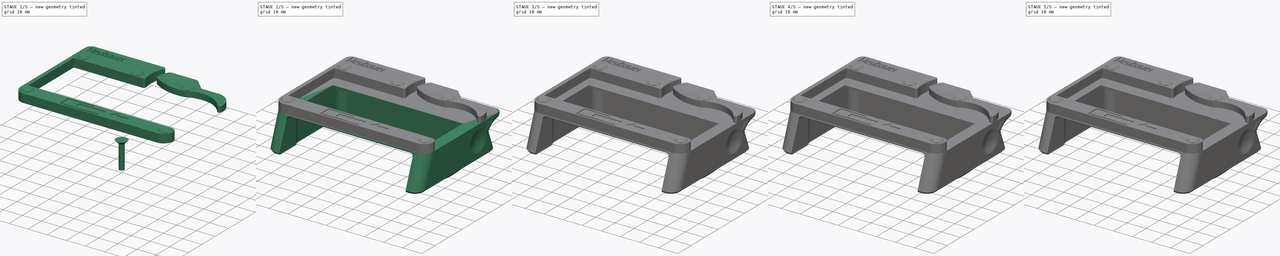
[diagram: build sequence overview — one tinted view per stage of 5, left to right]
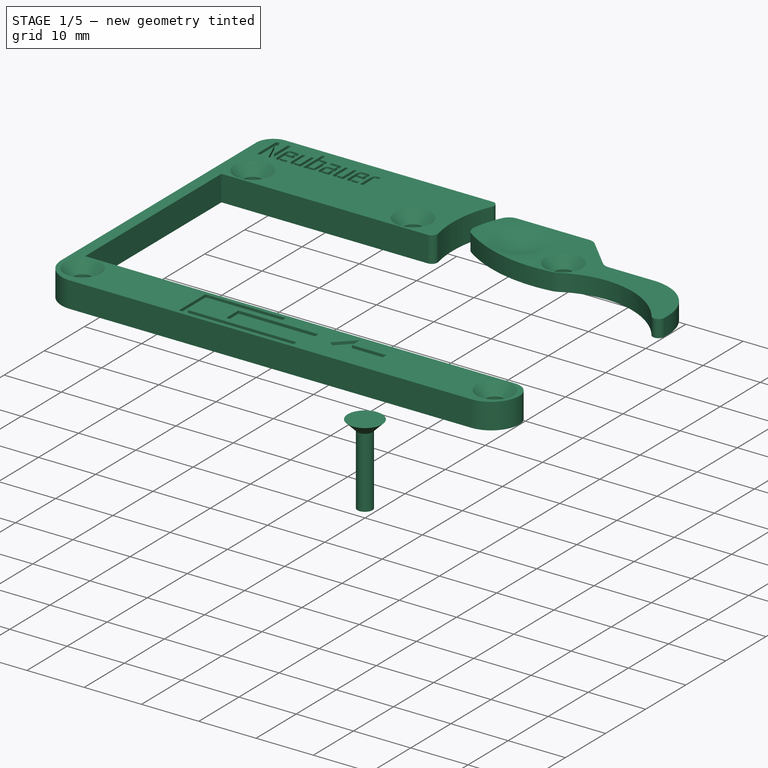
[diagram: stage 1 of 5 — iso view after this stage's code; geometry added in this stage tinted green]
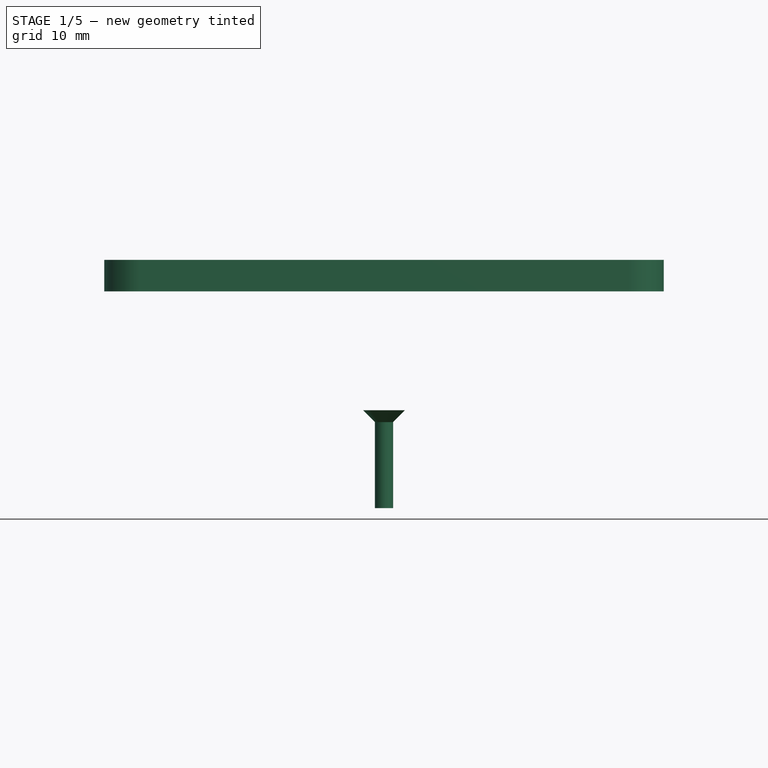
[diagram: stage 1 of 5 — front view after this stage's code; geometry added in this stage tinted green]
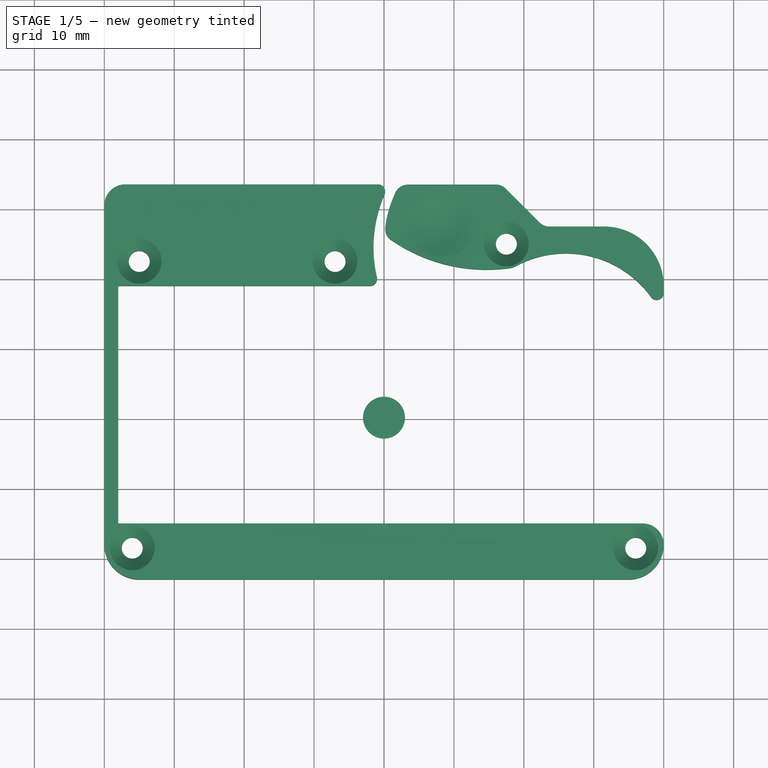
[diagram: stage 1 of 5 — top view after this stage's code; geometry added in this stage tinted green]
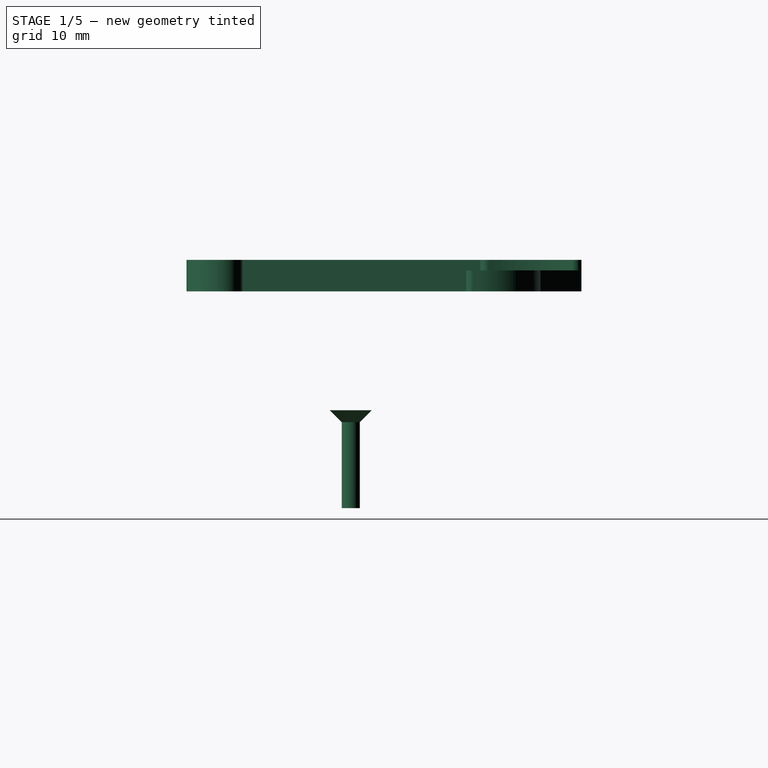
[diagram: stage 1 of 5 — right view after this stage's code; geometry added in this stage tinted green]
FCSTD DOCUMENT  (FreeCAD 0.16RUnknown)
Label: NeubauerTray
License: All rights reserved
LicenseURL: http://en.wikipedia.org/wiki/All_rights_reserved
objects: Part::FeaturePython×8, Part::Cut×5, App::DocumentObjectGroup×3, Spreadsheet::Sheet×1, Sketcher::SketchObject×1, PartDesign::Revolution×1, Part::Mirroring×1
note: 17 computed .brp shape members not serialized (recipe doc carries the construction recipe); baked Part::Feature solids carry a one-line shape summary decoded from their .brp

FEATURE [Sketcher::SketchObject] Sketch003  label="DIN7991M3 bolt"
  Placement = pos=(0,0,0) rot=(1,0,0;1.5708rad)
  expr: Constraints[11] = 1.5 - 2 * pars.CilTight
  sketch-geometry (5):
    g0: LineSegment StartX=0 StartY=0 StartZ=0 EndX=3 EndY=0 EndZ=0
    g1: LineSegment StartX=3 StartY=0 StartZ=0 EndX=1.3 EndY=-1.7 EndZ=0
    g2: LineSegment StartX=1.3 StartY=-1.7 StartZ=0 EndX=1.3 EndY=-14 EndZ=0
    g3: LineSegment StartX=1.3 StartY=-14 StartZ=0 EndX=0 EndY=-14 EndZ=0
    g4: LineSegment StartX=0 StartY=-14 StartZ=0 EndX=0 EndY=0 EndZ=0
  constraints (14):
    c: Coincident(g0,g1)
    c: Coincident(g1,g2)
    c: Coincident(g2,g3)
    c: Coincident(g3,g4)
    c: Coincident(g4,g0)
    c: Vertical(g4)
    c: Vertical(g2)
    c: Horizontal(g3)
    c: Horizontal(g0)
    c: Angle(g0,g1) = 0.785398
    c: Coincident(g0,g-1)
    c: DistanceX(g3,g3) = 1.3
    c: DistanceY(g4,g4) = 14
    c: DistanceX(g0,g0) = 3
FEATURE [PartDesign::Revolution] Revolution  label="DIN7991M3 bolt001"
  Angle = 360
  Axis = (0,0,1)
  Base = (0,0,0)
  Placement = pos=(0,0,0) rot=(1,0,0;1.5708rad)
  ReferenceAxis = -> Sketch003 [V_Axis]
  Reversed = true
  Sketch = -> Sketch003
FEATURE [Part::FeaturePython] NeubauerTop_01  label="NeubauerTop"  # a2plus imported part (geometry in sourceFile) (typed FeaturePython)
  Placement = pos=(0,0,17) rot=(0,0,1;3.14159rad)
  fixedPosition = false
  sourceFile = ./NeubauerTop.fcstd
  timeLastImport = 1.52278e+09
  updateColors = true
FEATURE [Part::FeaturePython] NeubauerFix_01  label="NeubauerFix"  # a2plus imported part (geometry in sourceFile) (typed FeaturePython)
  Placement = pos=(0,0,17) rot=(0,0,1;0rad)
  fixedPosition = false
  sourceFile = ./NeubauerFix.fcstd
  timeLastImport = 1.52166e+09
  updateColors = true
FEATURE [App::DocumentObjectGroup] Group  label="Reference"
  Group = -> [NeubauerFix_01,NeubauerTop_01]
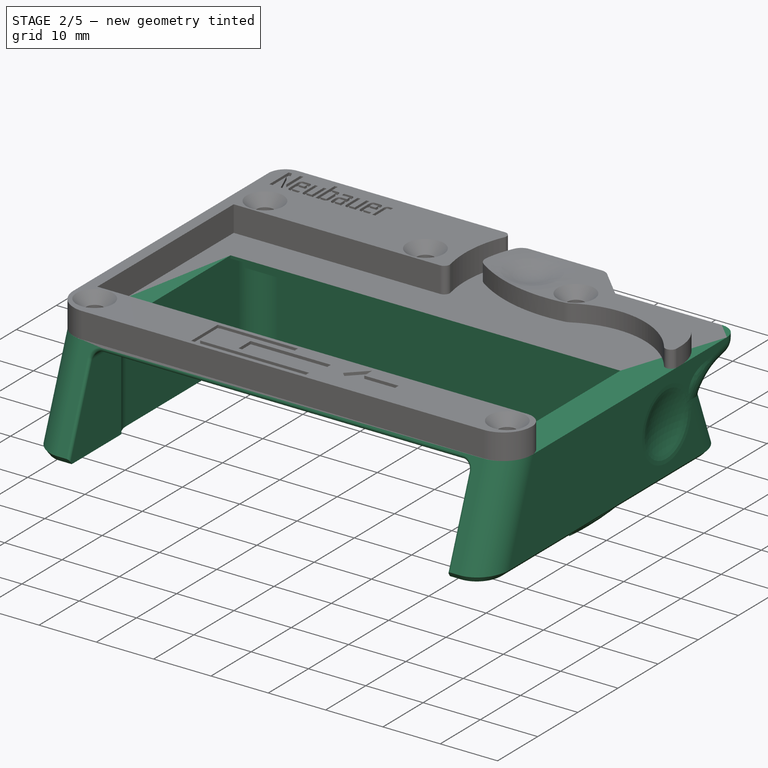
[diagram: stage 2 of 5 — iso view after this stage's code; geometry added in this stage tinted green]
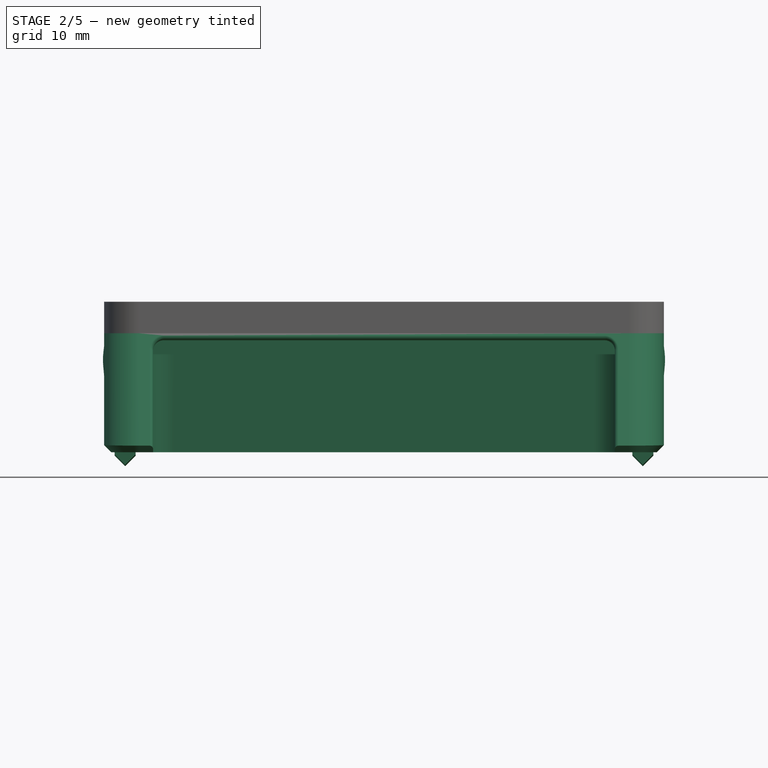
[diagram: stage 2 of 5 — front view after this stage's code; geometry added in this stage tinted green]
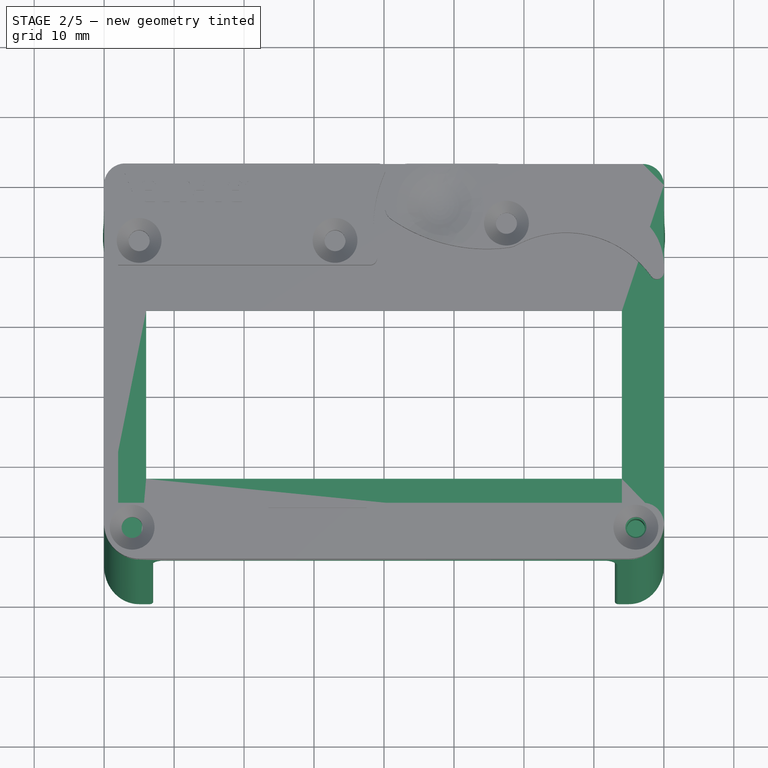
[diagram: stage 2 of 5 — top view after this stage's code; geometry added in this stage tinted green]
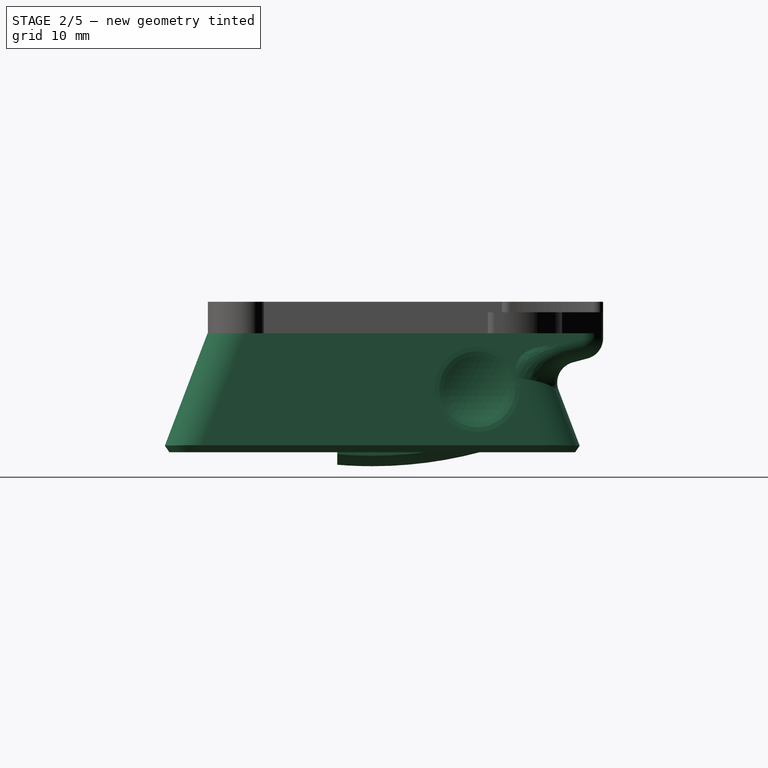
[diagram: stage 2 of 5 — right view after this stage's code; geometry added in this stage tinted green]
FEATURE [Spreadsheet::Sheet] Spreadsheet  label="pars"
  cells = A1=Bolts and Nuts; B1=Value; D1=Components; E1=Value; A2=Thread Tight Tolerance (Radius, ratio); B2(ThrTighRatio)=0.96; D2=Tight Cilinder Tolerances (Radius, mm); E2(CilTight)=0.1; A3=Thread Tight Tolerance (Radius, mm); B3(ThrTightmm)=0.1; D3=Loose Cilinder Tolerances (Radius, mm); E3(CilLoose)=0.1; A5=Nut Slot Width Clearance (mm); B5(NutWidthClearmm)=0.1; A6=Nut Slot Thickess Clearance (mm); B6(NutThickClearmm)=0.1; A13=Particular parameters; B13=Value
FEATURE [Part::FeaturePython] SampleTray_01  label="SampleTray"  # a2plus imported part (geometry in sourceFile) (typed FeaturePython)
  fixedPosition = true
  sourceFile = ./../SampleTray.fcstd
  timeLastImport = 1.52952e+09
  updateColors = true
FEATURE [App::DocumentObjectGroup] Group002  label="Component_src"
  Group = -> [Revolution]
FEATURE [Part::FeaturePython] Clone  label="Clone of DIN7991M3 bolt001"  # Draft clone (typed FeaturePython)
  Objects = -> [Revolution]
  Placement = pos=(36,-19,18) rot=(1,0,0;1.5708rad)
  Scale = (1,1,1)
FEATURE [Part::Cut] Cut
  Base = -> SampleTray_01
  Tool = -> Clone
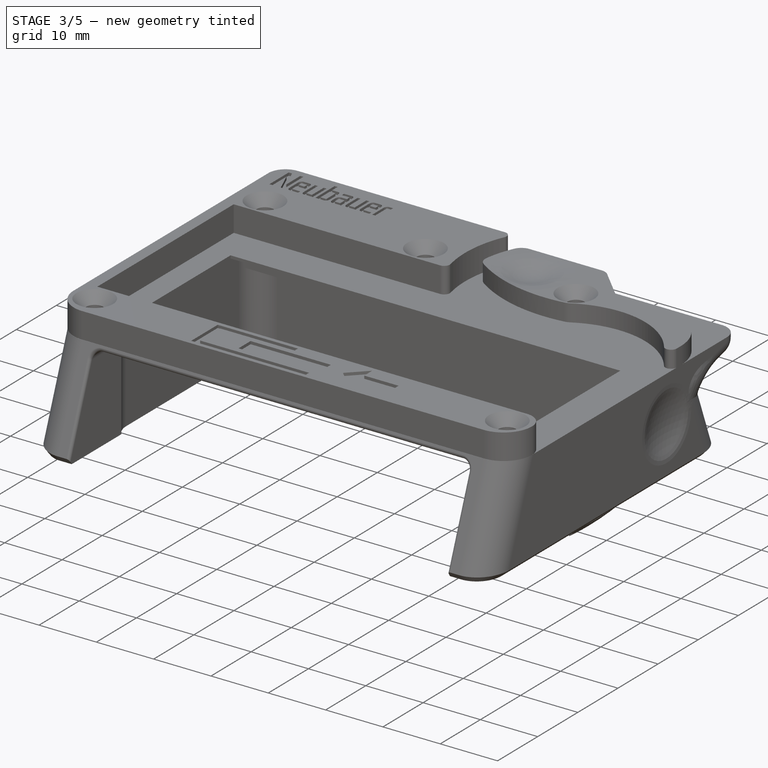
[diagram: stage 3 of 5 — iso view after this stage's code; geometry added in this stage tinted green]
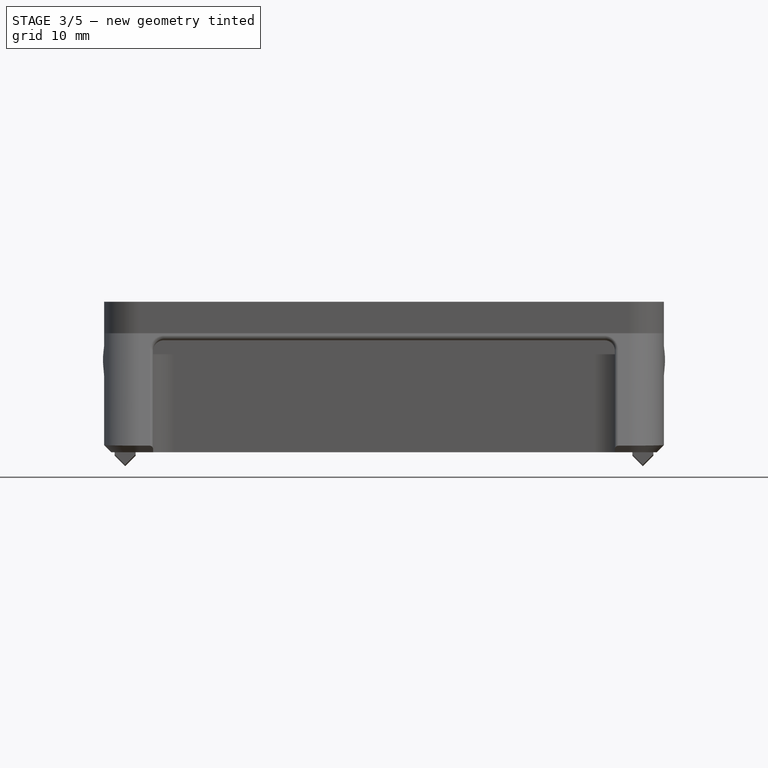
[diagram: stage 3 of 5 — front view after this stage's code; geometry added in this stage tinted green]
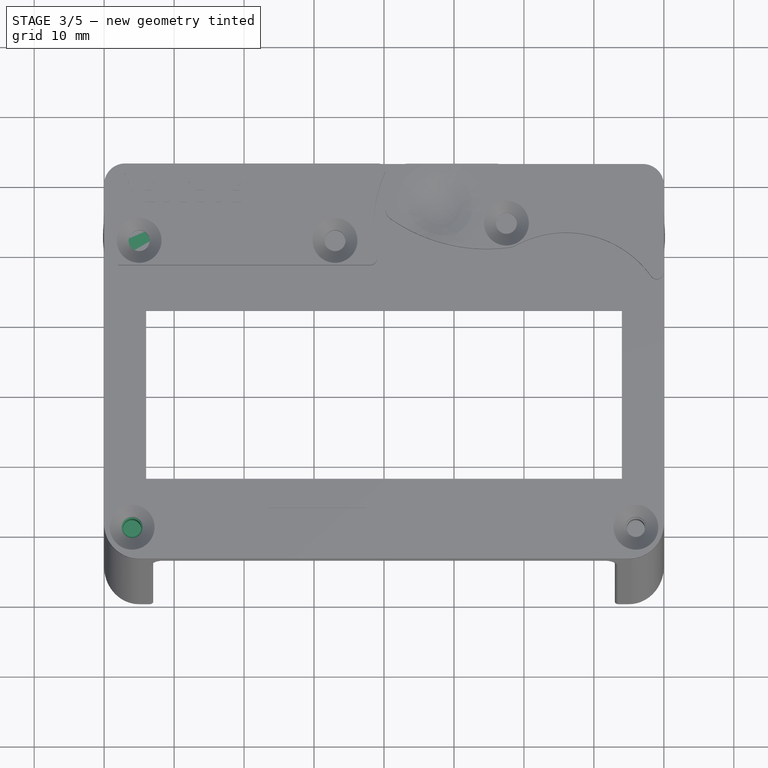
[diagram: stage 3 of 5 — top view after this stage's code; geometry added in this stage tinted green]
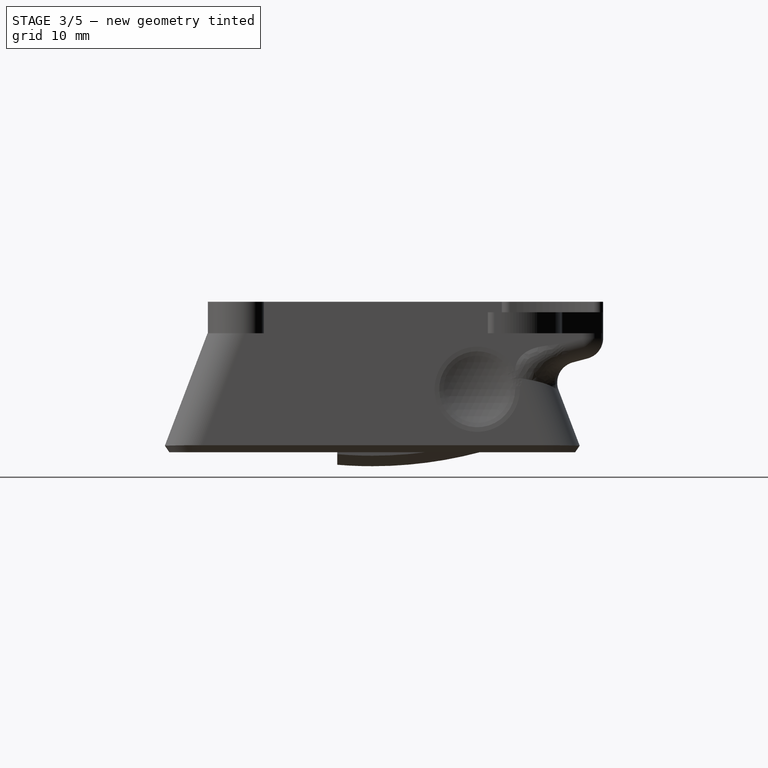
[diagram: stage 3 of 5 — right view after this stage's code; geometry added in this stage tinted green]
FEATURE [Part::FeaturePython] Clone001  label="Clone of DIN7991M3 bolt002"  # Draft clone (typed FeaturePython)
  Objects = -> [Revolution]
  Placement = pos=(-35,22,18) rot=(1,0,0;1.5708rad)
  Scale = (1,1,1)
FEATURE [Part::Mirroring] Part__Mirroring  label="Clone of DIN7991M3 bolt001 (Mirror #1)"
  Base = (0,0,0)
  Normal = (1,0,0)
  Source = -> Clone
FEATURE [Part::Cut] Cut001
  Base = -> Cut
  Tool = -> Part__Mirroring
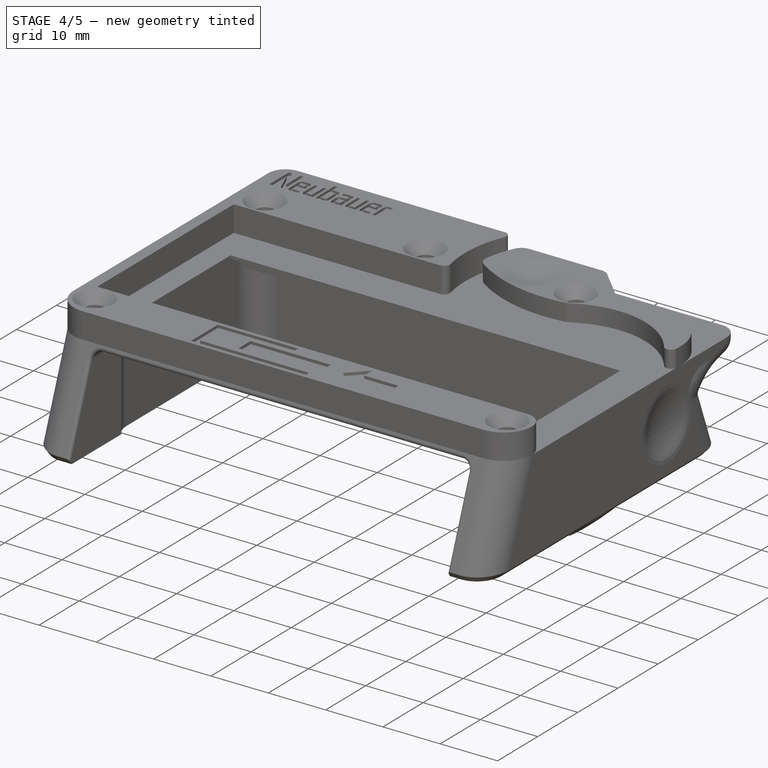
[diagram: stage 4 of 5 — iso view after this stage's code; geometry added in this stage tinted green]
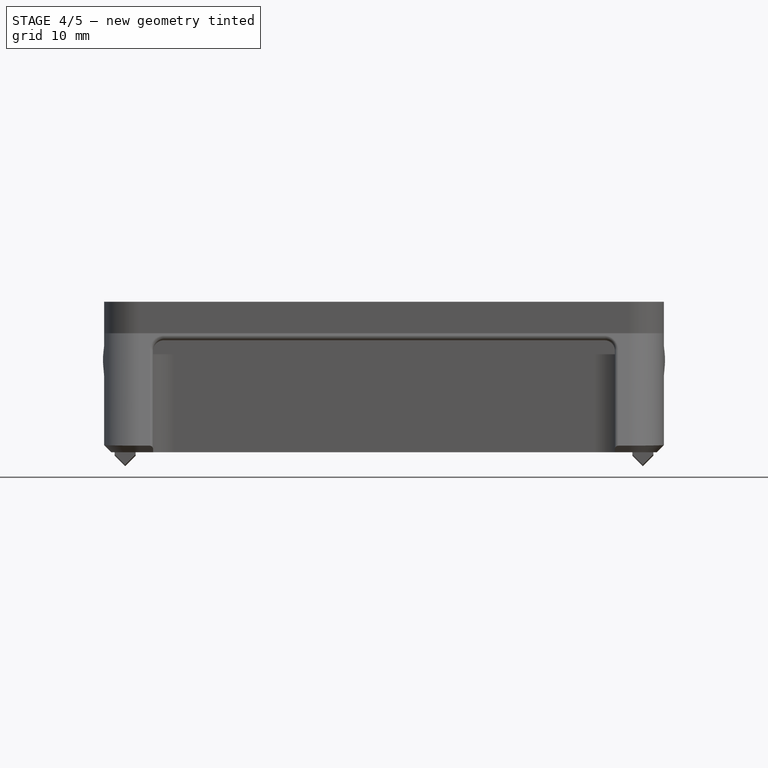
[diagram: stage 4 of 5 — front view after this stage's code; geometry added in this stage tinted green]
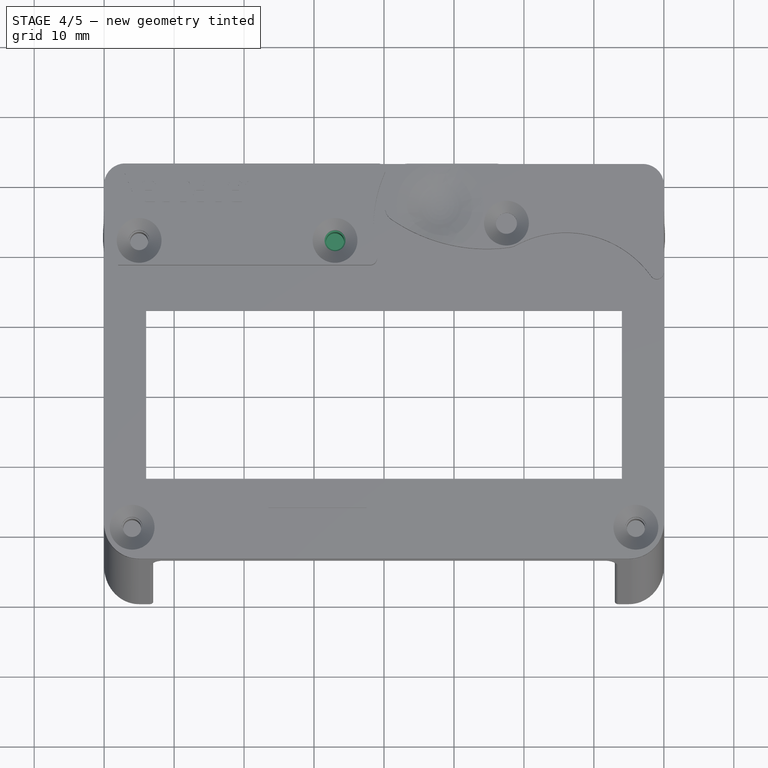
[diagram: stage 4 of 5 — top view after this stage's code; geometry added in this stage tinted green]
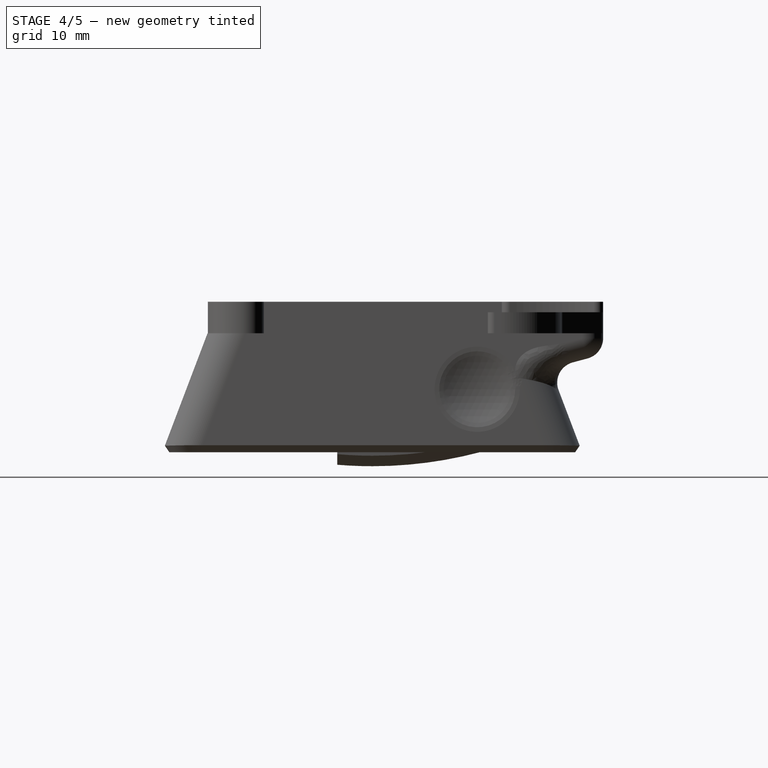
[diagram: stage 4 of 5 — right view after this stage's code; geometry added in this stage tinted green]
FEATURE [Part::FeaturePython] Clone002  label="Clone of DIN7991M3 bolt003"  # Draft clone (typed FeaturePython)
  Objects = -> [Revolution]
  Placement = pos=(-7,22,18) rot=(1,0,0;1.5708rad)
  Scale = (1,1,1)
FEATURE [Part::Cut] Cut002
  Base = -> Cut001
  Tool = -> Clone001
FEATURE [Part::Cut] Cut003
  Base = -> Cut002
  Tool = -> Clone002
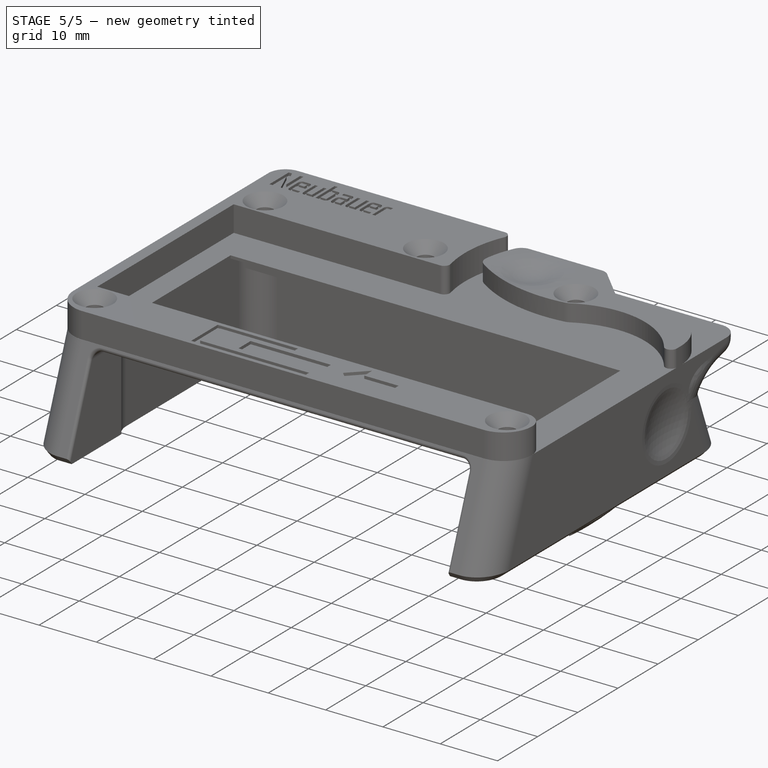
[diagram: stage 5 of 5 — iso view after this stage's code; geometry added in this stage tinted green]
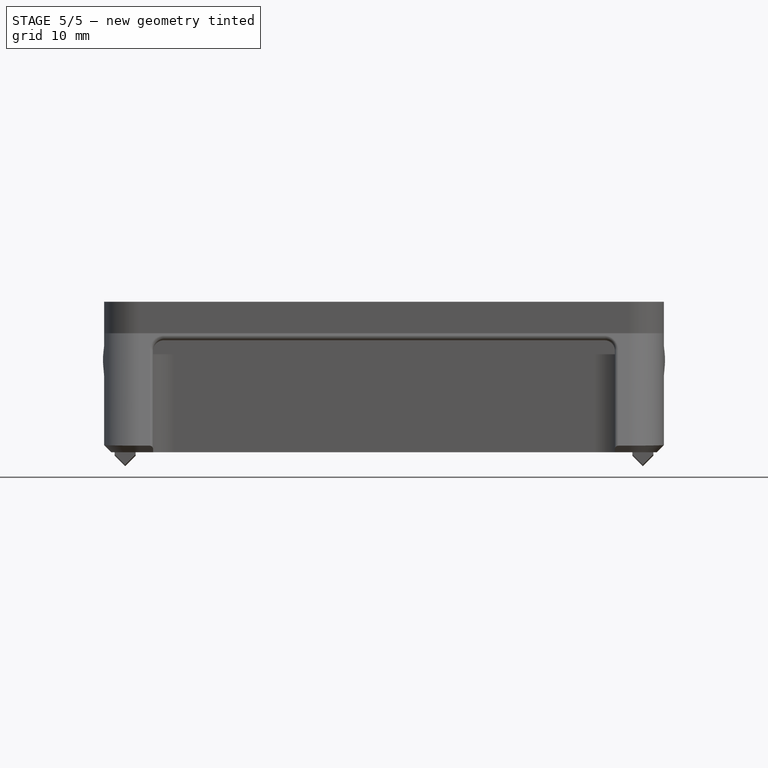
[diagram: stage 5 of 5 — front view after this stage's code; geometry added in this stage tinted green]
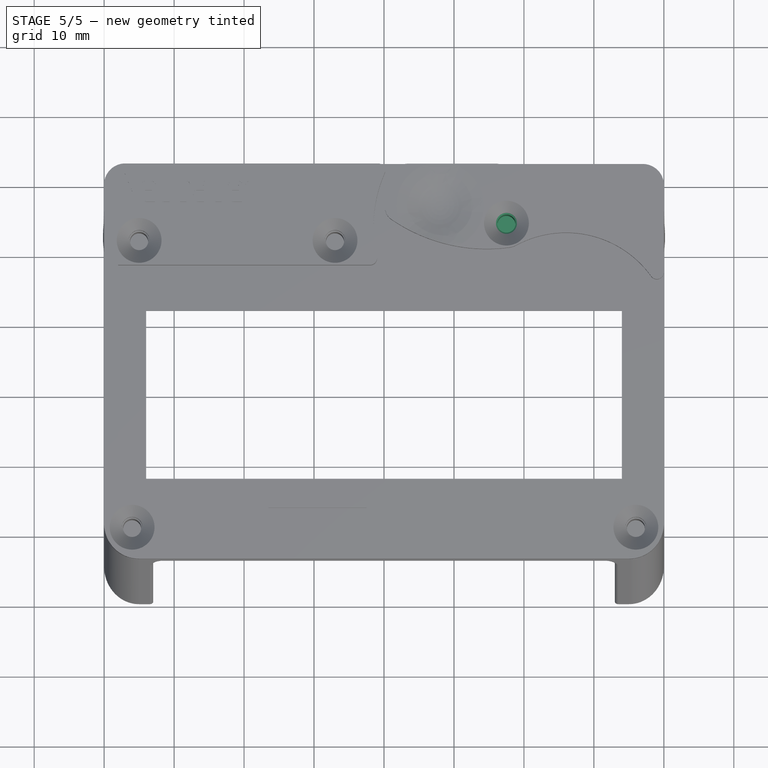
[diagram: stage 5 of 5 — top view after this stage's code; geometry added in this stage tinted green]
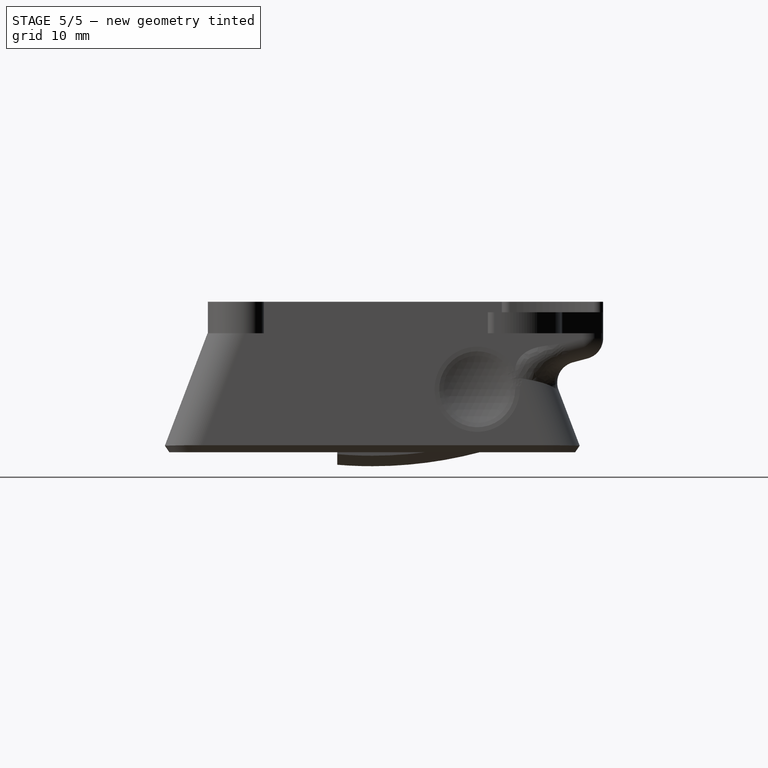
[diagram: stage 5 of 5 — right view after this stage's code; geometry added in this stage tinted green]
FEATURE [Part::FeaturePython] Clone003  label="Clone of DIN7991M3 bolt004"  # Draft clone (typed FeaturePython)
  Objects = -> [Revolution]
  Placement = pos=(17.5,24.5,18) rot=(1,0,0;1.5708rad)
  Scale = (1,1,1)
FEATURE [Part::Cut] Cut004  label="BoltCuts"
  Base = -> Cut003
  Tool = -> Clone003
FEATURE [App::DocumentObjectGroup] Group001  label="src"
  Group = -> [Cut004]
FEATURE [Part::FeaturePython] Clone004  label="NeubauerTray"  # Draft clone (typed FeaturePython)
  Objects = -> [Cut004]
  Scale = (1,1,1)
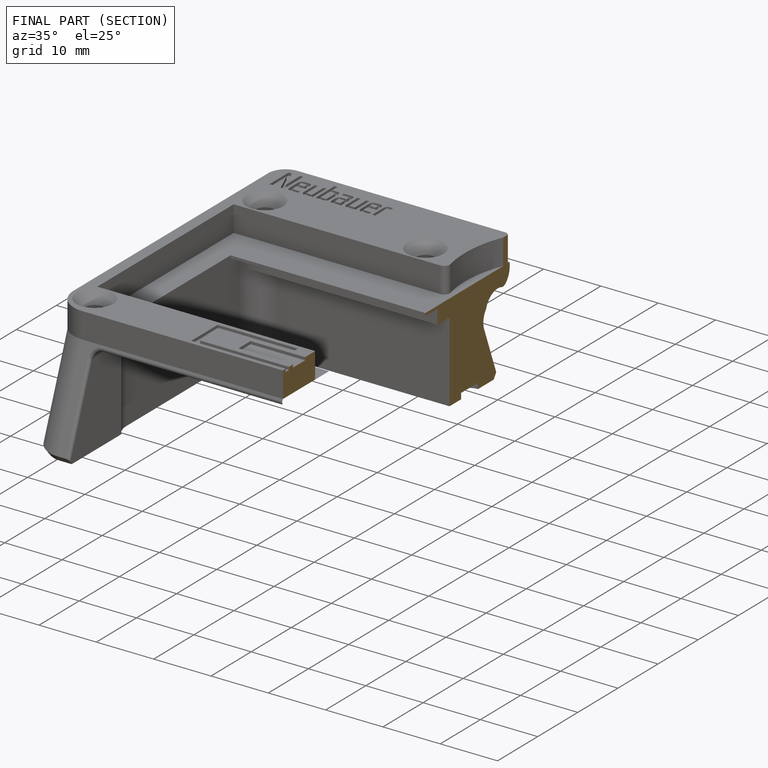
[diagram: finished part — half-section view (interior)]
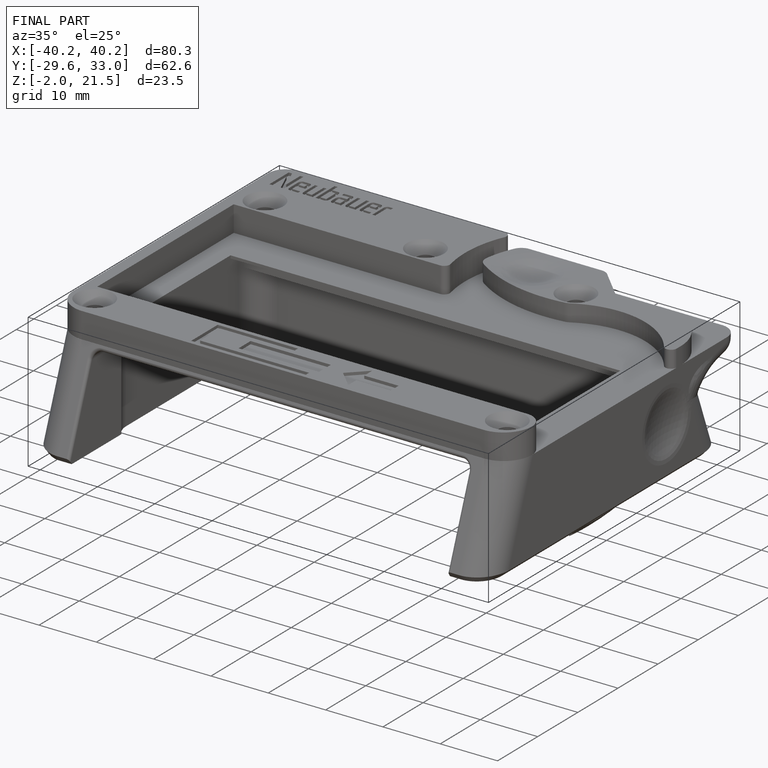
[diagram: finished part — iso view with bounding-box wireframe]
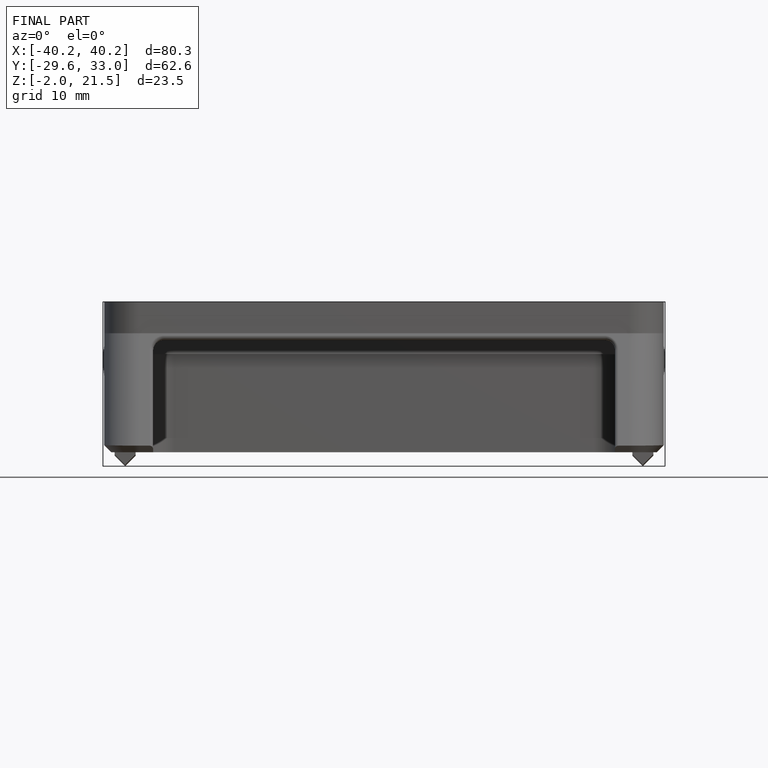
[diagram: finished part — front view with bounding-box wireframe]
